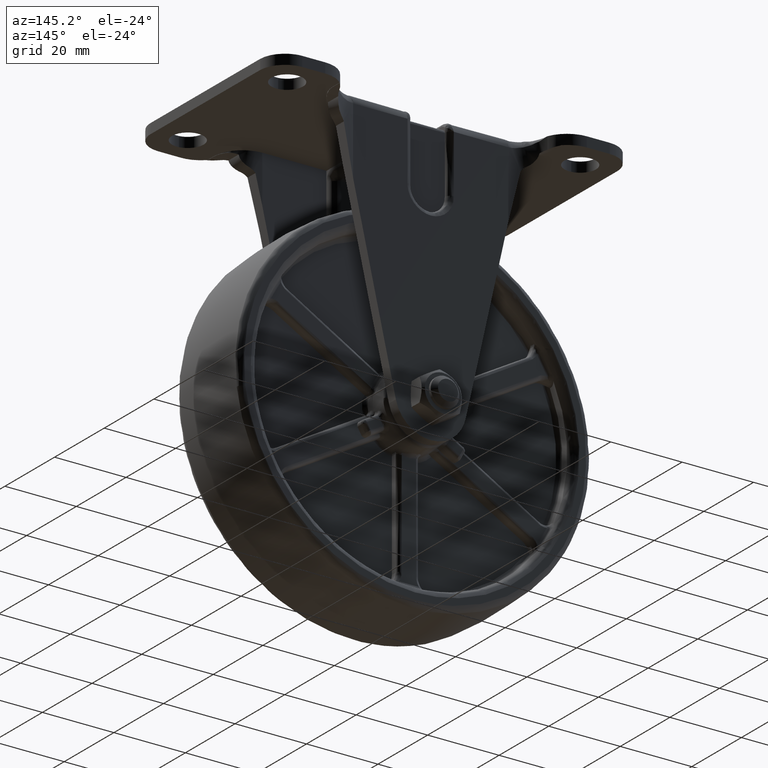
[diagram: clean part render]
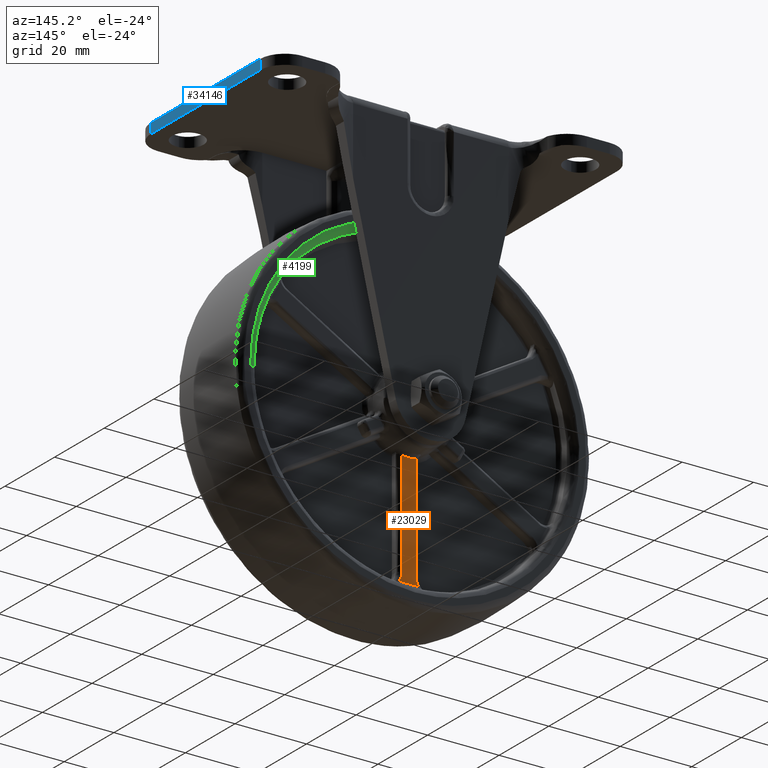
[diagram: same view with three faces highlighted in distinct colors, each labeled with its STEP entity id]
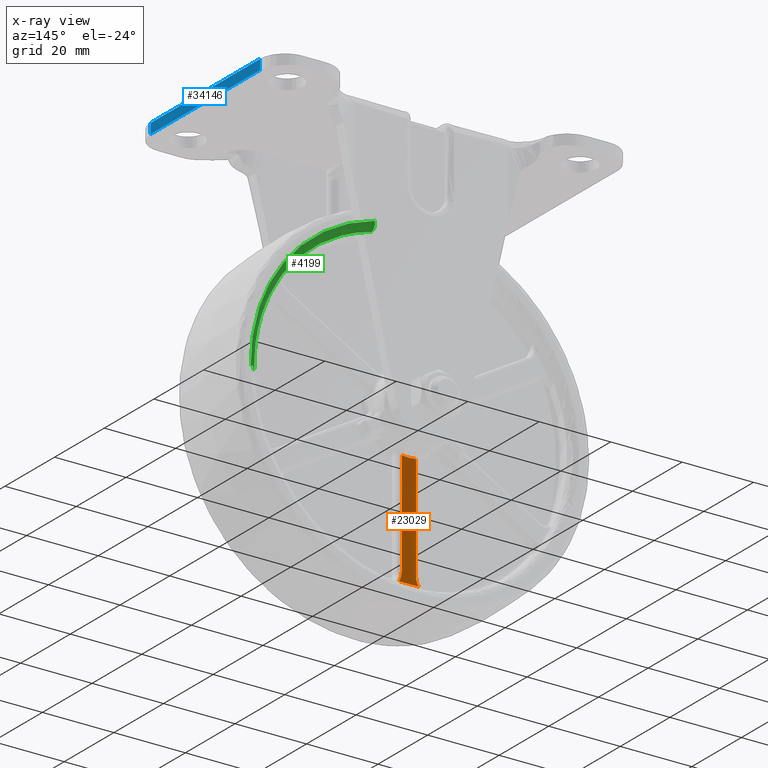
[diagram: x-ray of the same camera — body ghosted, the three highlighted faces saturated]
A machine part, auxiliary view with three faces highlighted in distinct colors.
The next image is the same camera in x-ray (body ghosted, the three faces saturated) — at least one of them is partly hidden behind the body in this view.
Their STEP definitions:

[orange] entity #23029 — the highlighted face is a freeform B-spline surface patch.
#8270=CARTESIAN_POINT('',(-2.0,10.0,-11.049078780343461));
#8271=VERTEX_POINT('',#8270);
#8334=CARTESIAN_POINT('',(2.000000000000200,10.0,-11.049078780343420));
#8335=VERTEX_POINT('',#8334);
#8349=CARTESIAN_POINT('',(-1.999999999999999,10.0,-11.049078780343470));
#8350=CARTESIAN_POINT('',(1.006140E-013,10.0,-11.411099387417659));
#8351=CARTESIAN_POINT('',(2.000000000000197,10.0,-11.049078780343430));
#8359=(BOUNDED_CURVE()B_SPLINE_CURVE(2,(#8349,#8350,#8351),.UNSPECIFIED.,.F.,.U.)CURVE()GEOMETRIC_REPRESENTATION_ITEM()QUASI_UNIFORM_CURVE()RATIONAL_B_SPLINE_CURVE((1.0,0.984009522110450,1.0))REPRESENTATION_ITEM(''));
#8360=EDGE_CURVE('',#8271,#8335,#8359,.T.);
#16890=CARTESIAN_POINT('',(2.740539649698430,10.0,-42.954624607841502));
#16891=VERTEX_POINT('',#16890);
#16940=CARTESIAN_POINT('',(-2.740539649698220,10.0,-42.954624607841552));
#16941=VERTEX_POINT('',#16940);
#16955=CARTESIAN_POINT('',(2.740539649698436,10.0,-42.954624607841517));
#16956=CARTESIAN_POINT('',(5.811324E-014,10.0,-43.129473179853505));
#16957=CARTESIAN_POINT('',(-2.740539649698216,10.0,-42.954624607841552));
#16965=(BOUNDED_CURVE()B_SPLINE_CURVE(2,(#16955,#16956,#16957),.UNSPECIFIED.,.F.,.U.)CURVE()GEOMETRIC_REPRESENTATION_ITEM()QUASI_UNIFORM_CURVE()RATIONAL_B_SPLINE_CURVE((1.0,0.997970922608465,1.0))REPRESENTATION_ITEM(''));
#16966=EDGE_CURVE('',#16891,#16941,#16965,.T.);
#21816=CARTESIAN_POINT('',(-2.0,10.0,-40.481477245772552));
#21817=VERTEX_POINT('',#21816);
#21818=CARTESIAN_POINT('',(-2.0,10.0,-40.481477245772552));
#21819=CARTESIAN_POINT('',(-2.0,10.0,-11.049078780343461));
#21820=QUASI_UNIFORM_CURVE('',1,(#21818,#21819),.UNSPECIFIED.,.F.,.U.);
#21821=EDGE_CURVE('',#21817,#8271,#21820,.T.);
#21856=CARTESIAN_POINT('',(-2.740539649698222,10.0,-42.954624607841552));
#21857=CARTESIAN_POINT('',(-2.000000000000000,9.999999999999998,-41.828921589264539));
#21858=CARTESIAN_POINT('',(-2.0,10.0,-40.481477245772552));
#21866=(BOUNDED_CURVE()B_SPLINE_CURVE(2,(#21856,#21857,#21858),.UNSPECIFIED.,.F.,.U.)CURVE()GEOMETRIC_REPRESENTATION_ITEM()QUASI_UNIFORM_CURVE()RATIONAL_B_SPLINE_CURVE((1.0,0.957975895678068,1.0))REPRESENTATION_ITEM(''));
#21867=EDGE_CURVE('',#16941,#21817,#21866,.T.);
#21922=CARTESIAN_POINT('',(2.000000000000200,10.0,-40.481477245772503));
#21923=VERTEX_POINT('',#21922);
#21924=CARTESIAN_POINT('',(2.000000000000200,10.0,-40.481477245772503));
#21925=CARTESIAN_POINT('',(2.000000000000200,10.0,-41.828921589264489));
#21926=CARTESIAN_POINT('',(2.740539649698428,10.0,-42.954624607841502));
#21934=(BOUNDED_CURVE()B_SPLINE_CURVE(2,(#21924,#21925,#21926),.UNSPECIFIED.,.F.,.U.)CURVE()GEOMETRIC_REPRESENTATION_ITEM()QUASI_UNIFORM_CURVE()RATIONAL_B_SPLINE_CURVE((1.0,0.957975895678068,1.0))REPRESENTATION_ITEM(''));
#21935=EDGE_CURVE('',#21923,#16891,#21934,.T.);
#21967=CARTESIAN_POINT('',(2.000000000000200,10.0,-11.049078780343420));
#21968=CARTESIAN_POINT('',(2.000000000000200,10.0,-40.481477245772503));
#21969=QUASI_UNIFORM_CURVE('',1,(#21967,#21968),.UNSPECIFIED.,.F.,.U.);
#21970=EDGE_CURVE('',#8335,#21923,#21969,.T.);
#23016=CARTESIAN_POINT('',(-3.014319427592521,10.0,-9.451053851190403));
#23017=CARTESIAN_POINT('',(3.014319280578728,10.0,-9.451053851190403));
#23018=CARTESIAN_POINT('',(-3.014319427592521,10.0,-44.639596883156472));
#23019=CARTESIAN_POINT('',(3.014319280578728,10.0,-44.639596883156472));
#23020=B_SPLINE_SURFACE_WITH_KNOTS('',1,1,((#23016,#23018),(#23017,#23019)),.UNSPECIFIED.,.F.,.F.,.U.,(2,2),(2,2),(0.0,6.028638708171249),(0.0,35.188543031966070),.UNSPECIFIED.);
#23021=ORIENTED_EDGE('',*,*,#21821,.T.);
#23022=ORIENTED_EDGE('',*,*,#8360,.T.);
#23023=ORIENTED_EDGE('',*,*,#21970,.T.);
#23024=ORIENTED_EDGE('',*,*,#21935,.T.);
#23025=ORIENTED_EDGE('',*,*,#16966,.T.);
#23026=ORIENTED_EDGE('',*,*,#21867,.T.);
#23027=EDGE_LOOP('',(#23021,#23022,#23023,#23024,#23025,#23026));
#23028=FACE_OUTER_BOUND('',#23027,.T.);
#23029=ADVANCED_FACE('',(#23028),#23020,.T.);

[blue] entity #34146 — the highlighted face is a freeform B-spline surface patch.
#34080=CARTESIAN_POINT('',(50.0,22.0,72.0));
#34081=VERTEX_POINT('',#34080);
#34095=CARTESIAN_POINT('',(50.0,22.0,69.199996999999996));
#34096=VERTEX_POINT('',#34095);
#34097=CARTESIAN_POINT('',(50.0,22.0,69.199996999999996));
#34098=CARTESIAN_POINT('',(50.0,22.0,72.0));
#34099=QUASI_UNIFORM_CURVE('',1,(#34097,#34098),.UNSPECIFIED.,.F.,.U.);
#34100=EDGE_CURVE('',#34096,#34081,#34099,.T.);
#34119=CARTESIAN_POINT('',(50.0,-24.197799914719461,72.139860144423054));
#34120=CARTESIAN_POINT('',(50.0,-24.197799914719461,69.060136780475005));
#34121=CARTESIAN_POINT('',(50.0,24.197801094891432,72.139860144423054));
#34122=CARTESIAN_POINT('',(50.0,24.197801094891432,69.060136780475005));
#34123=B_SPLINE_SURFACE_WITH_KNOTS('',1,1,((#34119,#34121),(#34120,#34122)),.UNSPECIFIED.,.F.,.F.,.U.,(2,2),(2,2),(0.0,3.079723363948048),(0.0,48.395601009610893),.UNSPECIFIED.);
#34124=CARTESIAN_POINT('',(50.0,-22.0,72.0));
#34125=VERTEX_POINT('',#34124);
#34126=CARTESIAN_POINT('',(50.0,-22.0,72.0));
#34127=CARTESIAN_POINT('',(50.0,22.0,72.0));
#34128=QUASI_UNIFORM_CURVE('',1,(#34126,#34127),.UNSPECIFIED.,.F.,.U.);
#34129=EDGE_CURVE('',#34125,#34081,#34128,.T.);
#34130=ORIENTED_EDGE('',*,*,#34129,.F.);
#34131=CARTESIAN_POINT('',(50.0,-22.0,69.199996999999996));
#34132=VERTEX_POINT('',#34131);
#34133=CARTESIAN_POINT('',(50.0,-22.0,69.199996999999996));
#34134=CARTESIAN_POINT('',(50.0,-22.0,72.0));
#34135=QUASI_UNIFORM_CURVE('',1,(#34133,#34134),.UNSPECIFIED.,.F.,.U.);
#34136=EDGE_CURVE('',#34132,#34125,#34135,.T.);
#34137=ORIENTED_EDGE('',*,*,#34136,.F.);
#34138=CARTESIAN_POINT('',(50.0,-22.0,69.199996999999996));
#34139=CARTESIAN_POINT('',(50.0,22.0,69.199996999999996));
#34140=QUASI_UNIFORM_CURVE('',1,(#34138,#34139),.UNSPECIFIED.,.F.,.U.);
#34141=EDGE_CURVE('',#34132,#34096,#34140,.T.);
#34142=ORIENTED_EDGE('',*,*,#34141,.T.);
#34143=ORIENTED_EDGE('',*,*,#34100,.T.);
#34144=EDGE_LOOP('',(#34130,#34137,#34142,#34143));
#34145=FACE_OUTER_BOUND('',#34144,.T.);
#34146=ADVANCED_FACE('',(#34145),#34123,.T.);

[green] entity #4199 — the highlighted face is a freeform B-spline surface patch.
#3683=CARTESIAN_POINT('',(11.329775356849160,12.500000000000000,44.582946167416878));
#3684=VERTEX_POINT('',#3683);
#3700=CARTESIAN_POINT('',(10.837176599743310,10.500000001795691,42.644558574006041));
#3701=VERTEX_POINT('',#3700);
#3702=CARTESIAN_POINT('',(10.837176599743312,10.500000001795687,42.644558574006055));
#3703=CARTESIAN_POINT('',(10.837176600624151,12.499999998895612,42.644558577487722));
#3704=CARTESIAN_POINT('',(11.329775356849161,12.499999999999995,44.582946167416878));
#3712=(BOUNDED_CURVE()B_SPLINE_CURVE(2,(#3702,#3703,#3704),.UNSPECIFIED.,.F.,.U.)B_SPLINE_CURVE_WITH_KNOTS((3,3),(-1.725134641440347,-0.274865357284458),.UNSPECIFIED.)CURVE()GEOMETRIC_REPRESENTATION_ITEM()RATIONAL_B_SPLINE_CURVE((0.813796889066510,0.575441299591176,0.813796889485674))REPRESENTATION_ITEM(''));
#3713=EDGE_CURVE('',#3701,#3684,#3712,.T.);
#4025=CARTESIAN_POINT('',(43.996541943704507,10.500000001829850,-0.552889955924249));
#4026=VERTEX_POINT('',#4025);
#4040=CARTESIAN_POINT('',(45.996384035334088,12.500000000000000,-0.578022040354431));
#4041=VERTEX_POINT('',#4040);
#4042=CARTESIAN_POINT('',(43.996541943704514,10.500000001829850,-0.552889955924249));
#4043=CARTESIAN_POINT('',(43.996541947363902,12.500000006560573,-0.552889955970239));
#4044=CARTESIAN_POINT('',(45.996384035334081,12.500000000000000,-0.578022040354431));
#4052=(BOUNDED_CURVE()B_SPLINE_CURVE(2,(#4042,#4043,#4044),.UNSPECIFIED.,.F.,.U.)B_SPLINE_CURVE_WITH_KNOTS((3,3),(-1.725134641405312,-0.274865353354267),.UNSPECIFIED.)CURVE()GEOMETRIC_REPRESENTATION_ITEM()RATIONAL_B_SPLINE_CURVE((0.883342148983531,0.624617223862229,0.883342150853291))REPRESENTATION_ITEM(''));
#4053=EDGE_CURVE('',#4026,#4041,#4052,.T.);
#4088=CARTESIAN_POINT('',(44.001382832823708,10.360925748054926,-0.552950791533319));
#4089=CARTESIAN_POINT('',(44.437004415917961,10.360925748054928,34.110888595319494));
#4090=CARTESIAN_POINT('',(10.838374621162771,10.360925748054928,42.649249276163076));
#4091=CARTESIAN_POINT('',(43.841479803939400,12.655075173702251,-0.550941285032704));
#4092=CARTESIAN_POINT('',(44.275518318364007,12.655075173702254,33.986928131017720));
#4093=CARTESIAN_POINT('',(10.798987474247618,12.655075173702251,42.494260020339873));
#4094=CARTESIAN_POINT('',(46.135448034581664,12.495158677658313,-0.579769657477198));
#4095=CARTESIAN_POINT('',(46.592197245985872,12.495158677658310,35.765264469910605));
#4096=CARTESIAN_POINT('',(11.364035330748155,12.495158677658306,44.717735281753384));
#4104=(BOUNDED_SURFACE()B_SPLINE_SURFACE(2,2,((#4088,#4091,#4094),(#4089,#4092,#4095),(#4090,#4093,#4096)),.UNSPECIFIED.,.F.,.F.,.U.)B_SPLINE_SURFACE_WITH_KNOTS((3,3),(3,3),(0.0,63.933608875143840),(0.0,3.644748790098457),.UNSPECIFIED.)GEOMETRIC_REPRESENTATION_ITEM()RATIONAL_B_SPLINE_SURFACE(((0.910479802101346,0.597479495657822,0.910479954144327),(0.686474202672341,0.450481448845058,0.686474317308145),(0.838797971830955,0.550440095443850,0.838798111903633)))REPRESENTATION_ITEM('')SURFACE());
#4105=CARTESIAN_POINT('',(45.996384035334088,12.499999999999998,-0.578022040354431));
#4106=CARTESIAN_POINT('',(46.000015999999903,12.500000000000004,-0.289014432782119));
#4107=CARTESIAN_POINT('',(46.000015999999903,12.500000000000000,0.000015999999905));
#4108=CARTESIAN_POINT('',(46.000015999999903,12.500000000000000,35.772263770474822));
#4109=CARTESIAN_POINT('',(11.329775356849163,12.499999999999995,44.582946167416885));
#4117=(BOUNDED_CURVE()B_SPLINE_CURVE(2,(#4105,#4106,#4107,#4108,#4109),.UNSPECIFIED.,.F.,.U.)B_SPLINE_CURVE_WITH_KNOTS((3,2,3),(0.247784295886382,0.250000000000000,0.457957040597859),.UNSPECIFIED.)CURVE()GEOMETRIC_REPRESENTATION_ITEM()RATIONAL_B_SPLINE_CURVE((0.994854295562659,0.997404141160897,1.0,0.756363172017492,0.918054293858121))REPRESENTATION_ITEM(''));
#4118=EDGE_CURVE('',#4041,#3684,#4117,.T.);
#4119=ORIENTED_EDGE('',*,*,#4118,.F.);
#4120=ORIENTED_EDGE('',*,*,#4053,.F.);
#4121=CARTESIAN_POINT('',(40.118460760522048,10.500000000000000,18.069617938246950));
#4122=VERTEX_POINT('',#4121);
#4123=CARTESIAN_POINT('',(43.996541943704514,10.500000001829850,-0.552889955924249));
#4124=CARTESIAN_POINT('',(44.118951682727385,10.499999999999998,9.187654814000638));
#4125=CARTESIAN_POINT('',(40.118460760522026,10.500000000000000,18.069617938246950));
#4133=(BOUNDED_CURVE()B_SPLINE_CURVE(2,(#4123,#4124,#4125),.UNSPECIFIED.,.F.,.U.)B_SPLINE_CURVE_WITH_KNOTS((3,3),(0.485375479361080,1.0),.UNSPECIFIED.)CURVE()GEOMETRIC_REPRESENTATION_ITEM()RATIONAL_B_SPLINE_CURVE((0.955929072385010,0.954601201040272,1.0))REPRESENTATION_ITEM(''));
#4134=EDGE_CURVE('',#4026,#4122,#4133,.T.);
#4135=ORIENTED_EDGE('',*,*,#4134,.T.);
#4136=CARTESIAN_POINT('',(39.453663040592801,10.833333333333339,19.541569770924198));
#4137=VERTEX_POINT('',#4136);
#4138=CARTESIAN_POINT('',(40.118460760522048,10.500000000000000,18.069617938246950));
#4139=CARTESIAN_POINT('',(40.066123005218252,10.555534089125549,18.185819179958418));
#4140=CARTESIAN_POINT('',(40.014423217125319,10.604382174975180,18.304820452037902));
#4141=CARTESIAN_POINT('',(39.909349446690953,10.688103198305161,18.547360497992440));
#4142=CARTESIAN_POINT('',(39.855814853312260,10.723052051629640,18.671242099410350));
#4143=CARTESIAN_POINT('',(39.746472548347000,10.778383211687760,18.919160952211389));
#4144=CARTESIAN_POINT('',(39.690533330283422,10.798940676604371,19.043522625886521));
#4145=CARTESIAN_POINT('',(39.574974222114093,10.826409003318730,19.292444965562790));
#4146=CARTESIAN_POINT('',(39.515359820824152,10.833333333333311,19.417006289100492));
#4147=CARTESIAN_POINT('',(39.453663040592801,10.833333333333339,19.541569770924198));
#4148=B_SPLINE_CURVE_WITH_KNOTS('',3,(#4138,#4139,#4140,#4141,#4142,#4143,#4144,#4145,#4146,#4147),.UNSPECIFIED.,.F.,.U.,(4,2,2,2,4),(0.0,0.250000000000000,0.500000000000000,0.750000000000000,1.0),.UNSPECIFIED.);
#4149=EDGE_CURVE('',#4122,#4137,#4148,.T.);
#4150=ORIENTED_EDGE('',*,*,#4149,.T.);
#4151=CARTESIAN_POINT('',(36.650328621440593,10.833333333333339,24.397090887022198));
#4152=VERTEX_POINT('',#4151);
#4153=CARTESIAN_POINT('',(39.453663040592737,10.833333333333339,19.541569770924180));
#4154=CARTESIAN_POINT('',(38.206889712362397,10.833333333333341,22.058758289126207));
#4155=CARTESIAN_POINT('',(36.650328621440558,10.833333333333339,24.397090887022181));
#4163=(BOUNDED_CURVE()B_SPLINE_CURVE(2,(#4153,#4154,#4155),.UNSPECIFIED.,.F.,.U.)CURVE()GEOMETRIC_REPRESENTATION_ITEM()QUASI_UNIFORM_CURVE()RATIONAL_B_SPLINE_CURVE((1.0,0.997970900148051,1.0))REPRESENTATION_ITEM(''));
#4164=EDGE_CURVE('',#4137,#4152,#4163,.T.);
#4165=ORIENTED_EDGE('',*,*,#4164,.T.);
#4166=CARTESIAN_POINT('',(35.707979753040952,10.500000000000000,25.708800295580001));
#4167=VERTEX_POINT('',#4166);
#4168=CARTESIAN_POINT('',(36.650328621440593,10.833333333333339,24.397090887022198));
#4169=CARTESIAN_POINT('',(36.573315855927760,10.833333333333339,24.512782754885961));
#4170=CARTESIAN_POINT('',(36.495083110034066,10.826411360155280,24.626941384143880));
#4171=CARTESIAN_POINT('',(36.376202304243513,10.805673305932380,24.796089602867891));
#4172=CARTESIAN_POINT('',(36.336324921729840,10.797026629640291,24.852126609710432));
#4173=CARTESIAN_POINT('',(36.256181968788013,10.776187542513110,24.963579819472159));
#4174=CARTESIAN_POINT('',(36.215962969583082,10.763999740758081,25.018929329393270));
#4175=CARTESIAN_POINT('',(36.095826193726303,10.722305925056700,25.183036140142448));
#4176=CARTESIAN_POINT('',(36.016140288120752,10.687600839259980,25.290207264654828));
#4177=CARTESIAN_POINT('',(35.859435188285097,10.604225990675451,25.501393718742531));
#4178=CARTESIAN_POINT('',(35.782424136094058,10.555519160632270,25.605401453680699));
#4179=CARTESIAN_POINT('',(35.707979753040952,10.500000000000000,25.708800295580001));
#4180=B_SPLINE_CURVE_WITH_KNOTS('',3,(#4168,#4169,#4170,#4171,#4172,#4173,#4174,#4175,#4176,#4177,#4178,#4179),.UNSPECIFIED.,.F.,.U.,(4,2,2,2,2,4),(0.0,0.249999999999988,0.374999999999989,0.499999999999989,0.749999999999994,1.0),.UNSPECIFIED.);
#4181=EDGE_CURVE('',#4152,#4167,#4180,.T.);
#4182=ORIENTED_EDGE('',*,*,#4181,.T.);
#4183=CARTESIAN_POINT('',(35.707979753040938,10.500000000000000,25.708800295579991));
#4184=CARTESIAN_POINT('',(26.353671150830458,10.500000000000002,38.701381287784059));
#4185=CARTESIAN_POINT('',(10.837176599743309,10.500000001795685,42.644558574006041));
#4193=(BOUNDED_CURVE()B_SPLINE_CURVE(2,(#4183,#4184,#4185),.UNSPECIFIED.,.F.,.U.)B_SPLINE_CURVE_WITH_KNOTS((3,3),(0.0,0.821770637819351),.UNSPECIFIED.)CURVE()GEOMETRIC_REPRESENTATION_ITEM()RATIONAL_B_SPLINE_CURVE((1.0,0.927505632539581,0.974158750251680))REPRESENTATION_ITEM(''));
#4194=EDGE_CURVE('',#4167,#3701,#4193,.T.);
#4195=ORIENTED_EDGE('',*,*,#4194,.T.);
#4196=ORIENTED_EDGE('',*,*,#3713,.T.);
#4197=EDGE_LOOP('',(#4119,#4120,#4135,#4150,#4165,#4182,#4195,#4196));
#4198=FACE_OUTER_BOUND('',#4197,.T.);
#4199=ADVANCED_FACE('',(#4198),#4104,.T.);